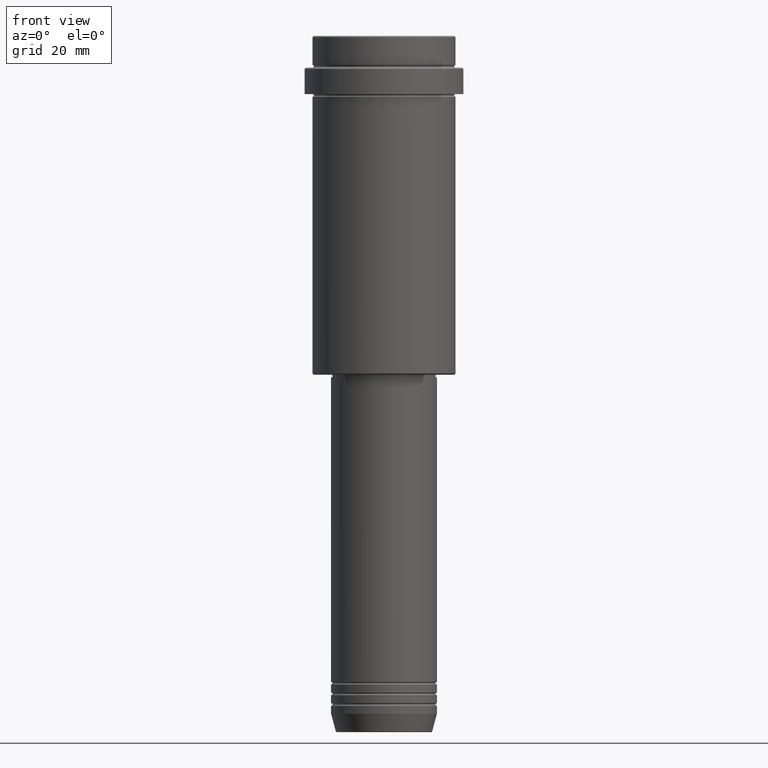
[diagram: clean part render]
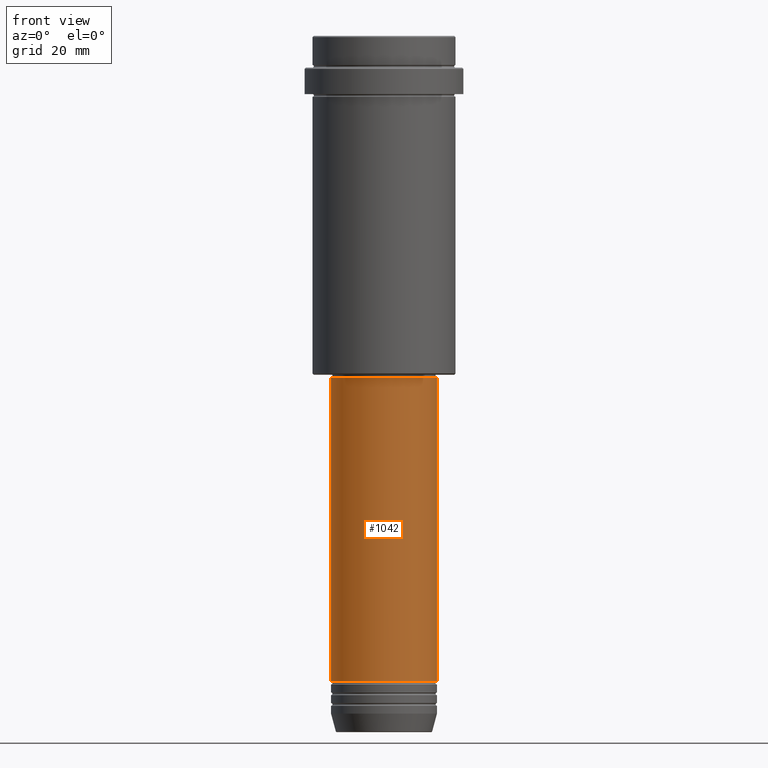
[diagram: same view with one face highlighted and labeled with its STEP entity id]
A machine part, front view. The second image highlights one B-rep face of the part: STEP entity #1042.
In plain terms, the highlighted cylindrical surface (partial cylindrical patch) has radius 20 mm, axis along (-0, -0, 1).
Its self-contained STEP definition (entity closure, byte-faithful):
#13 = AXIS2_PLACEMENT_3D ( 'NONE', #1053, #942, #1296 ) ;
#18 = CIRCLE ( 'NONE', #13, 20.00000000000000000 ) ;
#48 = ORIENTED_EDGE ( 'NONE', *, *, #726, .F. ) ;
#156 = ORIENTED_EDGE ( 'NONE', *, *, #1356, .T. ) ;
#198 = AXIS2_PLACEMENT_3D ( 'NONE', #408, #969, #961 ) ;
#235 = VERTEX_POINT ( 'NONE', #866 ) ;
#238 = CARTESIAN_POINT ( 'NONE',  ( 0.000000000000000000, 0.000000000000000000, 0.000000000000000000 ) ) ;
#239 = ORIENTED_EDGE ( 'NONE', *, *, #819, .T. ) ;
#281 = DIRECTION ( 'NONE',  ( -0.000000000000000000, -0.000000000000000000, 1.000000000000000000 ) ) ;
#325 = CARTESIAN_POINT ( 'NONE',  ( -20.00000000000000000, 2.449293598294706513E-15, -243.9999999999998863 ) ) ;
#347 = DIRECTION ( 'NONE',  ( 1.000000000000000000, 0.000000000000000000, 0.000000000000000000 ) ) ;
#369 = LINE ( 'NONE', #1230, #595 ) ;
#408 = CARTESIAN_POINT ( 'NONE',  ( 0.000000000000000000, 0.000000000000000000, -129.0000000000000000 ) ) ;
#445 = FACE_OUTER_BOUND ( 'NONE', #1058, .T. ) ;
#473 = CYLINDRICAL_SURFACE ( 'NONE', #1176, 19.99999999999999645 ) ;
#481 = VECTOR ( 'NONE', #281, 1000.000000000000000 ) ;
#514 = CARTESIAN_POINT ( 'NONE',  ( -19.99999999999999645, 2.449293598294706119E-15, -129.0000000000000000 ) ) ;
#583 = VERTEX_POINT ( 'NONE', #514 ) ;
#595 = VECTOR ( 'NONE', #800, 1000.000000000000000 ) ;
#611 = VERTEX_POINT ( 'NONE', #325 ) ;
#712 = LINE ( 'NONE', #938, #481 ) ;
#726 = EDGE_CURVE ( 'NONE', #611, #583, #369, .T. ) ;
#800 = DIRECTION ( 'NONE',  ( -0.000000000000000000, -0.000000000000000000, 1.000000000000000000 ) ) ;
#819 = EDGE_CURVE ( 'NONE', #235, #918, #712, .T. ) ;
#866 = CARTESIAN_POINT ( 'NONE',  ( 20.00000000000000000, 0.000000000000000000, -243.9999999999998863 ) ) ;
#868 = CARTESIAN_POINT ( 'NONE',  ( 19.99999999999999645, 0.000000000000000000, -129.0000000000000000 ) ) ;
#918 = VERTEX_POINT ( 'NONE', #868 ) ;
#938 = CARTESIAN_POINT ( 'NONE',  ( 19.99999999999999645, 0.000000000000000000, 0.000000000000000000 ) ) ;
#942 = DIRECTION ( 'NONE',  ( -0.000000000000000000, -0.000000000000000000, 1.000000000000000000 ) ) ;
#961 = DIRECTION ( 'NONE',  ( 1.000000000000000000, 0.000000000000000000, 0.000000000000000000 ) ) ;
#969 = DIRECTION ( 'NONE',  ( -0.000000000000000000, -0.000000000000000000, 1.000000000000000000 ) ) ;
#1042 = ADVANCED_FACE ( 'NONE', ( #445 ), #473, .T. ) ;
#1053 = CARTESIAN_POINT ( 'NONE',  ( 0.000000000000000000, 0.000000000000000000, -243.9999999999998863 ) ) ;
#1058 = EDGE_LOOP ( 'NONE', ( #48, #156, #239, #1313 ) ) ;
#1061 = CIRCLE ( 'NONE', #198, 19.99999999999999645 ) ;
#1105 = DIRECTION ( 'NONE',  ( -0.000000000000000000, -0.000000000000000000, 1.000000000000000000 ) ) ;
#1176 = AXIS2_PLACEMENT_3D ( 'NONE', #238, #1105, #347 ) ;
#1230 = CARTESIAN_POINT ( 'NONE',  ( -19.99999999999999645, 2.449293598294706119E-15, 0.000000000000000000 ) ) ;
#1296 = DIRECTION ( 'NONE',  ( 1.000000000000000000, 0.000000000000000000, 0.000000000000000000 ) ) ;
#1313 = ORIENTED_EDGE ( 'NONE', *, *, #1390, .F. ) ;
#1356 = EDGE_CURVE ( 'NONE', #611, #235, #18, .T. ) ;
#1390 = EDGE_CURVE ( 'NONE', #583, #918, #1061, .T. ) ;